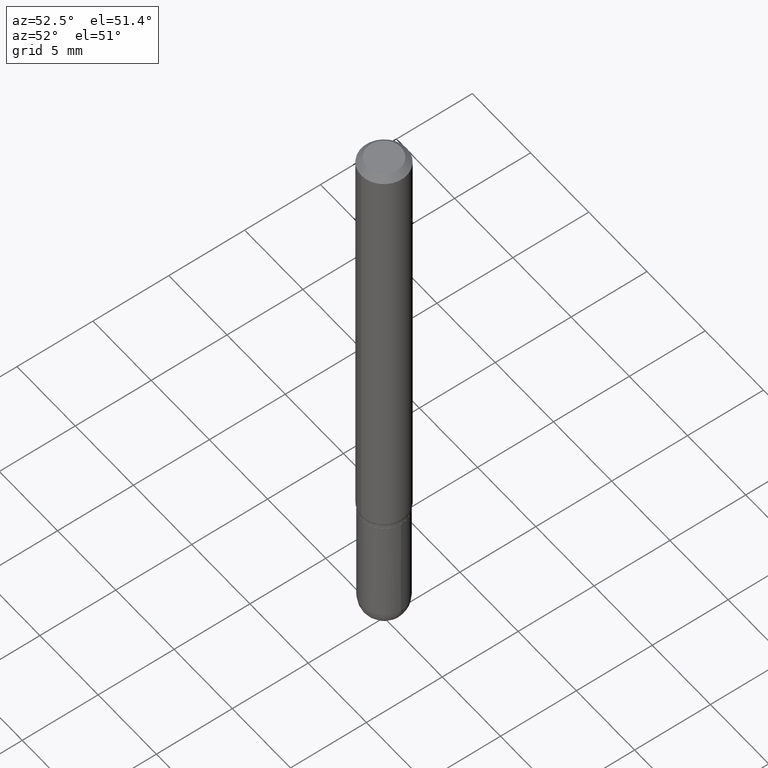
[diagram: clean part render]
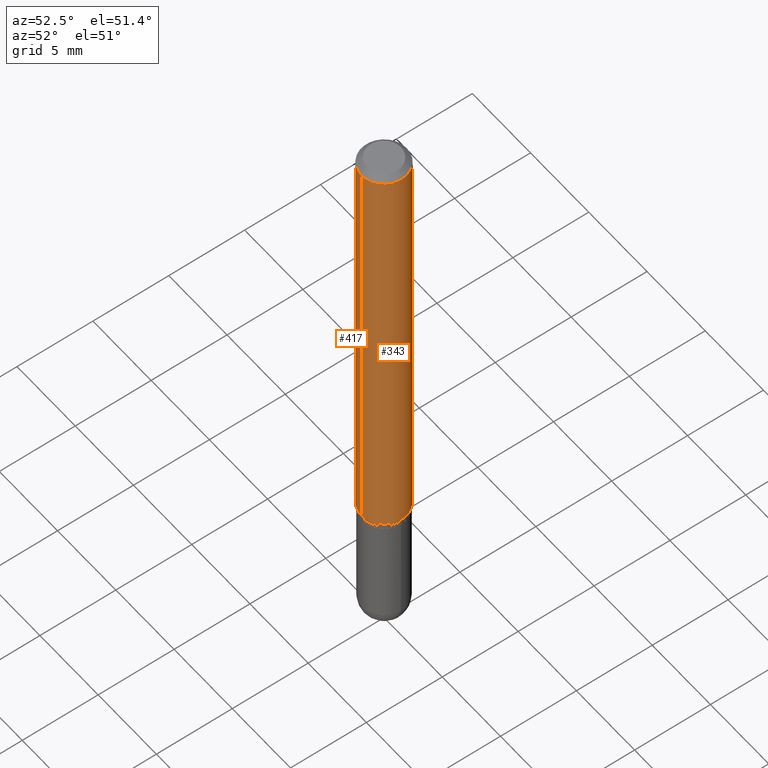
[diagram: same view with one multi-face feature highlighted, each face labeled with its STEP entity id]
A machine part, auxiliary view. The highlighted faces form ONE feature: a constant-radius fillet chain: 2 tangent blend faces with common blend radius 1.4999 mm. The faces share edges in the B-rep.
Their STEP definitions:
[1] entity #343 (Cylinder):
#2 = DIRECTION ( 'NONE',  ( -2.445514615068268608E-29, 3.491415737915221099E-15, 1.000000000000000000 ) ) ;
#8 = ORIENTED_EDGE ( 'NONE', *, *, #205, .F. ) ;
#13 = VERTEX_POINT ( 'NONE', #375 ) ;
#21 = DIRECTION ( 'NONE',  ( -2.445514615068268608E-29, 3.491415737915220705E-15, 1.000000000000000000 ) ) ;
#28 = LINE ( 'NONE', #191, #305 ) ;
#30 = CARTESIAN_POINT ( 'NONE',  ( 0.000000000000000000, 0.000000000000000000, 0.000000000000000000 ) ) ;
#70 = DIRECTION ( 'NONE',  ( -2.445514615068268608E-29, 3.491415737915220705E-15, 1.000000000000000000 ) ) ;
#83 = DIRECTION ( 'NONE',  ( -2.445514615068268608E-29, 3.491415737915220705E-15, 1.000000000000000000 ) ) ;
#107 = VECTOR ( 'NONE', #2, 39.37007874015748143 ) ;
#113 = AXIS2_PLACEMENT_3D ( 'NONE', #30, #70, #309 ) ;
#126 = AXIS2_PLACEMENT_3D ( 'NONE', #288, #21, #254 ) ;
#130 = VERTEX_POINT ( 'NONE', #226 ) ;
#143 = DIRECTION ( 'NONE',  ( -6.982962677686265922E-15, -1.000000000000000000, 3.505890868245046092E-15 ) ) ;
#155 = ORIENTED_EDGE ( 'NONE', *, *, #188, .T. ) ;
#156 = LINE ( 'NONE', #316, #107 ) ;
#178 = VERTEX_POINT ( 'NONE', #320 ) ;
#181 = CARTESIAN_POINT ( 'NONE',  ( 4.195754854663667580E-16, 0.05904999999999601540, -1.136322500925241119 ) ) ;
#188 = EDGE_CURVE ( 'NONE', #396, #130, #156, .T. ) ;
#191 = CARTESIAN_POINT ( 'NONE',  ( -4.123439461173739834E-16, -0.05904999999999999832, 2.061680993238937719E-16 ) ) ;
#205 = EDGE_CURVE ( 'NONE', #13, #178, #28, .T. ) ;
#226 = CARTESIAN_POINT ( 'NONE',  ( 4.195754854663671031E-16, 0.05904999999999994975, -0.01500000000000029955 ) ) ;
#254 = DIRECTION ( 'NONE',  ( -6.982962677686265922E-15, -1.000000000000000000, 4.626330217890369336E-15 ) ) ;
#255 = AXIS2_PLACEMENT_3D ( 'NONE', #433, #83, #143 ) ;
#256 = ORIENTED_EDGE ( 'NONE', *, *, #421, .F. ) ;
#257 = EDGE_CURVE ( 'NONE', #13, #396, #440, .T. ) ;
#288 = CARTESIAN_POINT ( 'NONE',  ( 2.778893283443602323E-29, -3.967374263077569282E-15, -1.136322500925240675 ) ) ;
#305 = VECTOR ( 'NONE', #499, 39.37007874015748143 ) ;
#309 = DIRECTION ( 'NONE',  ( -6.982962677686265922E-15, -1.000000000000000000, 3.491415737915220705E-15 ) ) ;
#315 = EDGE_LOOP ( 'NONE', ( #454, #155, #256, #8 ) ) ;
#316 = CARTESIAN_POINT ( 'NONE',  ( 4.195754854663390985E-16, 0.05904999999999999832, -2.061680993238937719E-16 ) ) ;
#320 = CARTESIAN_POINT ( 'NONE',  ( -4.123439461173736383E-16, -0.05905000000000005383, -0.01499999999999988495 ) ) ;
#343 = ADVANCED_FACE ( 'NONE', ( #463 ), #380, .T. ) ;
#375 = CARTESIAN_POINT ( 'NONE',  ( -4.123439461173463240E-16, -0.05905000000000398819, -1.136322500925240453 ) ) ;
#380 = CYLINDRICAL_SURFACE ( 'NONE', #113, 0.05904999999999999832 ) ;
#382 = CIRCLE ( 'NONE', #255, 0.05904999999999999832 ) ;
#396 = VERTEX_POINT ( 'NONE', #181 ) ;
#421 = EDGE_CURVE ( 'NONE', #178, #130, #382, .T. ) ;
#433 = CARTESIAN_POINT ( 'NONE',  ( 3.668271922602425245E-31, -5.237123606872862661E-17, -0.01500000000000009139 ) ) ;
#440 = CIRCLE ( 'NONE', #126, 0.05904999999999999832 ) ;
#454 = ORIENTED_EDGE ( 'NONE', *, *, #257, .T. ) ;
#463 = FACE_OUTER_BOUND ( 'NONE', #315, .T. ) ;
#499 = DIRECTION ( 'NONE',  ( -2.445514615068268608E-29, 3.491415737915221099E-15, 1.000000000000000000 ) ) ;
[2] entity #417 (Cylinder):
#2 = DIRECTION ( 'NONE',  ( -2.445514615068268608E-29, 3.491415737915221099E-15, 1.000000000000000000 ) ) ;
#13 = VERTEX_POINT ( 'NONE', #375 ) ;
#22 = CYLINDRICAL_SURFACE ( 'NONE', #78, 0.05904999999999999832 ) ;
#28 = LINE ( 'NONE', #191, #305 ) ;
#72 = DIRECTION ( 'NONE',  ( -2.445514615068268608E-29, 3.491415737915220705E-15, 1.000000000000000000 ) ) ;
#78 = AXIS2_PLACEMENT_3D ( 'NONE', #460, #99, #501 ) ;
#88 = ORIENTED_EDGE ( 'NONE', *, *, #453, .F. ) ;
#99 = DIRECTION ( 'NONE',  ( -2.445514615068268608E-29, 3.491415737915220705E-15, 1.000000000000000000 ) ) ;
#107 = VECTOR ( 'NONE', #2, 39.37007874015748143 ) ;
#130 = VERTEX_POINT ( 'NONE', #226 ) ;
#131 = ORIENTED_EDGE ( 'NONE', *, *, #188, .F. ) ;
#156 = LINE ( 'NONE', #316, #107 ) ;
#178 = VERTEX_POINT ( 'NONE', #320 ) ;
#181 = CARTESIAN_POINT ( 'NONE',  ( 4.195754854663667580E-16, 0.05904999999999601540, -1.136322500925241119 ) ) ;
#188 = EDGE_CURVE ( 'NONE', #396, #130, #156, .T. ) ;
#191 = CARTESIAN_POINT ( 'NONE',  ( -4.123439461173739834E-16, -0.05904999999999999832, 2.061680993238937719E-16 ) ) ;
#205 = EDGE_CURVE ( 'NONE', #13, #178, #28, .T. ) ;
#218 = CIRCLE ( 'NONE', #439, 0.05904999999999999832 ) ;
#226 = CARTESIAN_POINT ( 'NONE',  ( 4.195754854663671031E-16, 0.05904999999999994975, -0.01500000000000029955 ) ) ;
#252 = FACE_OUTER_BOUND ( 'NONE', #322, .T. ) ;
#260 = CARTESIAN_POINT ( 'NONE',  ( 2.778893283443602323E-29, -3.967374263077569282E-15, -1.136322500925240675 ) ) ;
#294 = CIRCLE ( 'NONE', #424, 0.05904999999999999832 ) ;
#305 = VECTOR ( 'NONE', #499, 39.37007874015748143 ) ;
#316 = CARTESIAN_POINT ( 'NONE',  ( 4.195754854663390985E-16, 0.05904999999999999832, -2.061680993238937719E-16 ) ) ;
#320 = CARTESIAN_POINT ( 'NONE',  ( -4.123439461173736383E-16, -0.05905000000000005383, -0.01499999999999988495 ) ) ;
#322 = EDGE_LOOP ( 'NONE', ( #131, #356, #430, #88 ) ) ;
#330 = DIRECTION ( 'NONE',  ( -2.445514615068268608E-29, 3.491415737915220705E-15, 1.000000000000000000 ) ) ;
#356 = ORIENTED_EDGE ( 'NONE', *, *, #438, .T. ) ;
#375 = CARTESIAN_POINT ( 'NONE',  ( -4.123439461173463240E-16, -0.05905000000000398819, -1.136322500925240453 ) ) ;
#376 = DIRECTION ( 'NONE',  ( -6.982962677686265922E-15, -1.000000000000000000, 4.626330217890369336E-15 ) ) ;
#379 = CARTESIAN_POINT ( 'NONE',  ( 3.668271922602425245E-31, -5.237123606872862661E-17, -0.01500000000000009139 ) ) ;
#391 = DIRECTION ( 'NONE',  ( -6.982962677686265922E-15, -1.000000000000000000, 3.505890868245046092E-15 ) ) ;
#396 = VERTEX_POINT ( 'NONE', #181 ) ;
#417 = ADVANCED_FACE ( 'NONE', ( #252 ), #22, .T. ) ;
#424 = AXIS2_PLACEMENT_3D ( 'NONE', #379, #72, #391 ) ;
#430 = ORIENTED_EDGE ( 'NONE', *, *, #205, .T. ) ;
#438 = EDGE_CURVE ( 'NONE', #396, #13, #218, .T. ) ;
#439 = AXIS2_PLACEMENT_3D ( 'NONE', #260, #330, #376 ) ;
#453 = EDGE_CURVE ( 'NONE', #130, #178, #294, .T. ) ;
#460 = CARTESIAN_POINT ( 'NONE',  ( 0.000000000000000000, 0.000000000000000000, 0.000000000000000000 ) ) ;
#499 = DIRECTION ( 'NONE',  ( -2.445514615068268608E-29, 3.491415737915221099E-15, 1.000000000000000000 ) ) ;
#501 = DIRECTION ( 'NONE',  ( -6.982962677686265922E-15, -1.000000000000000000, 3.491415737915220705E-15 ) ) ;